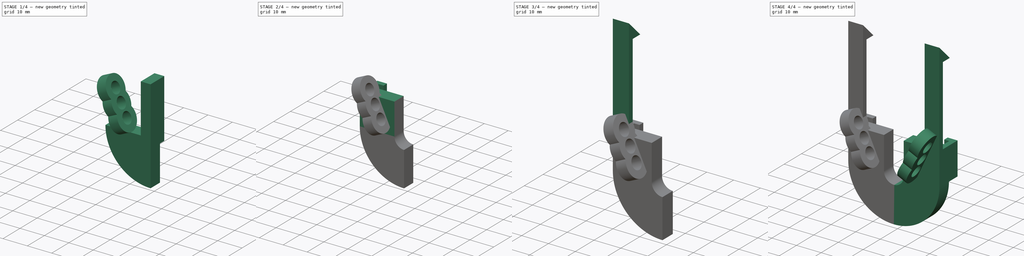
[diagram: build sequence overview — one tinted view per stage of 4, left to right]
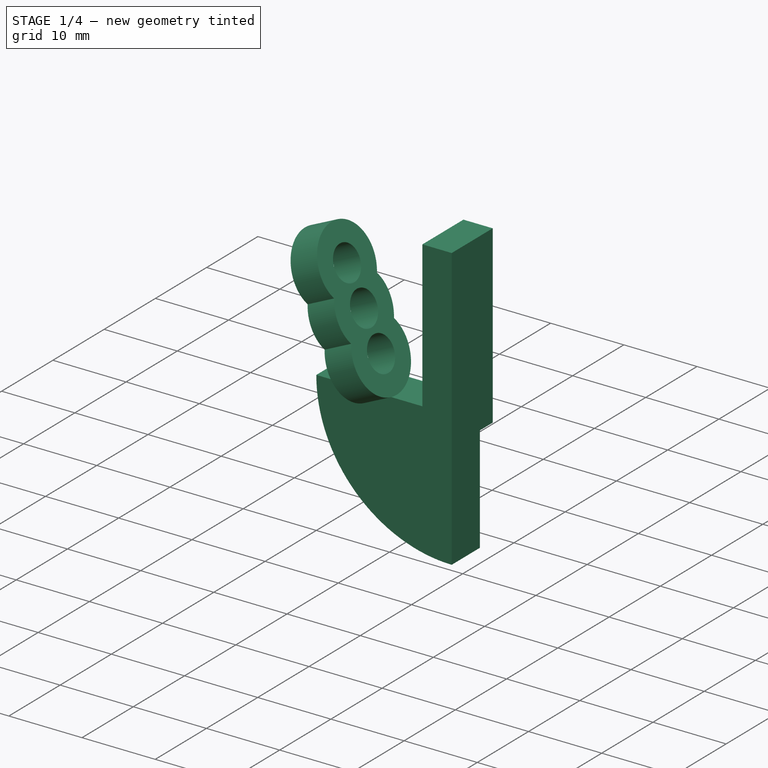
[diagram: stage 1 of 4 — iso view after this stage's code; geometry added in this stage tinted green]
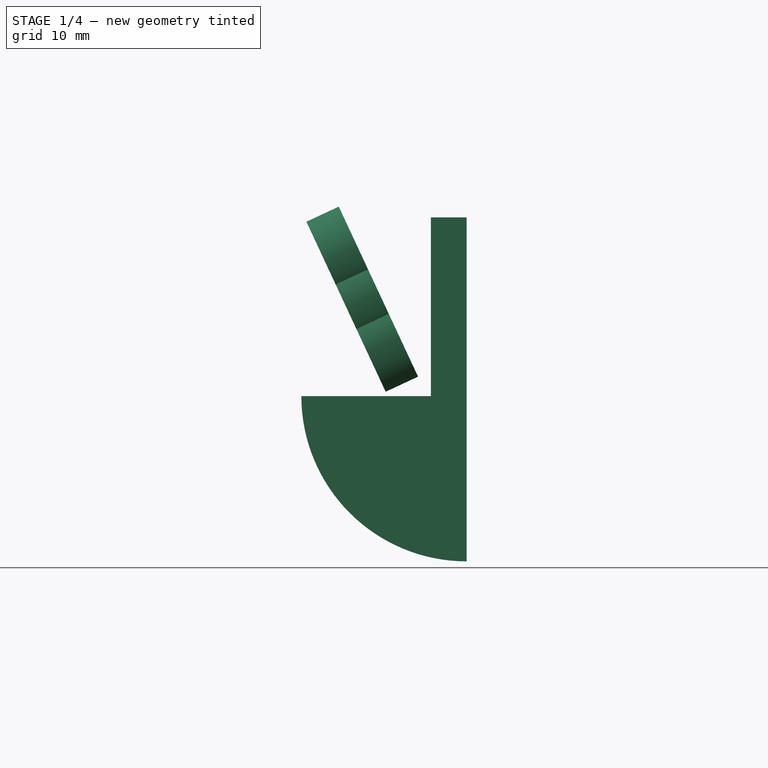
[diagram: stage 1 of 4 — front view after this stage's code; geometry added in this stage tinted green]
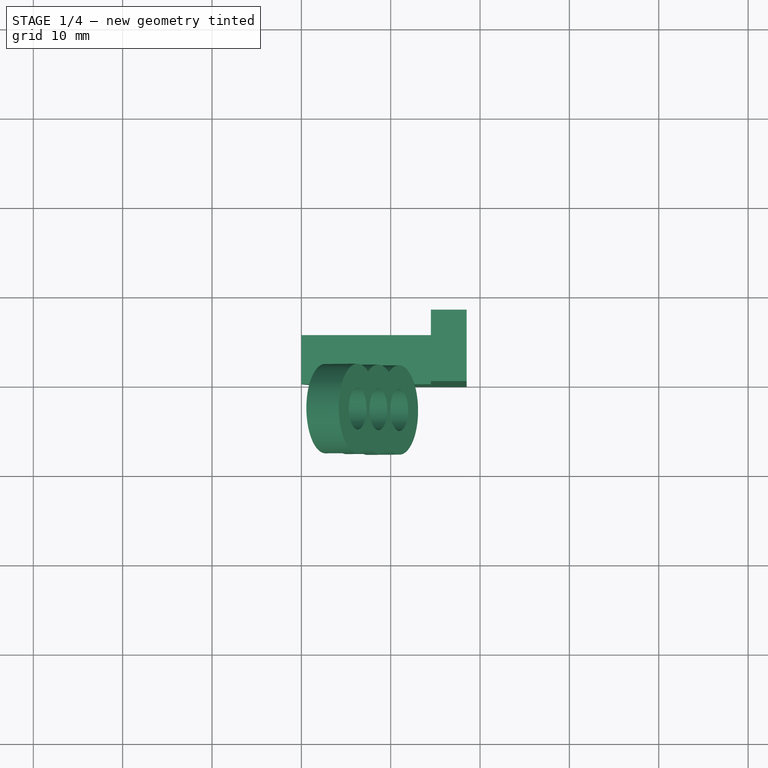
[diagram: stage 1 of 4 — top view after this stage's code; geometry added in this stage tinted green]
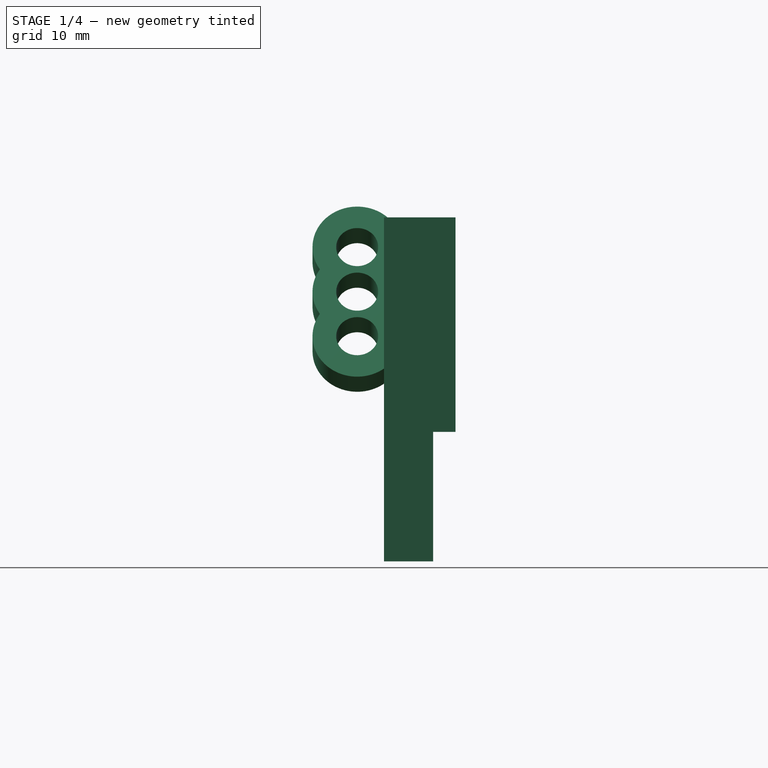
[diagram: stage 1 of 4 — right view after this stage's code; geometry added in this stage tinted green]
FCSTD DOCUMENT  (FreeCAD 0.14R3700 (Git))
Label: test2
License: CC-BY 3.0
LicenseURL: http://creativecommons.org/licenses/by/3.0/
objects: Sketcher::SketchObject×7, PartDesign::Pad×6, Part::MultiFuse×2, Part::Fuse×1, Part::Cut×1, PartDesign::Pocket×1, Part::Mirroring×1
note: 26 computed .brp shape members not serialized (recipe doc carries the construction recipe); baked Part::Feature solids carry a one-line shape summary decoded from their .brp

FEATURE [PartDesign::Pad] Pad001
  Length = 5.5
  Length2 = 20
  Placement = pos=(0,0,0) rot=(1,0,0;1.5708rad)
  Reversed = true
  Sketch = -> Sketch001
  Type = 0
FEATURE [PartDesign::Pad] Pad002
  Length = 8
  Length2 = 20
  Placement = pos=(0,0,0) rot=(1,0,0;1.5708rad)
  Reversed = true
  Sketch = -> Sketch004
  Type = 0
FEATURE [PartDesign::Pad] Pad005
  Length = 4
  Length2 = 20
  Placement = pos=(5,-3,10) rot=(0,1,0;1.13446rad)
  Sketch = -> Sketch002
  Type = 0
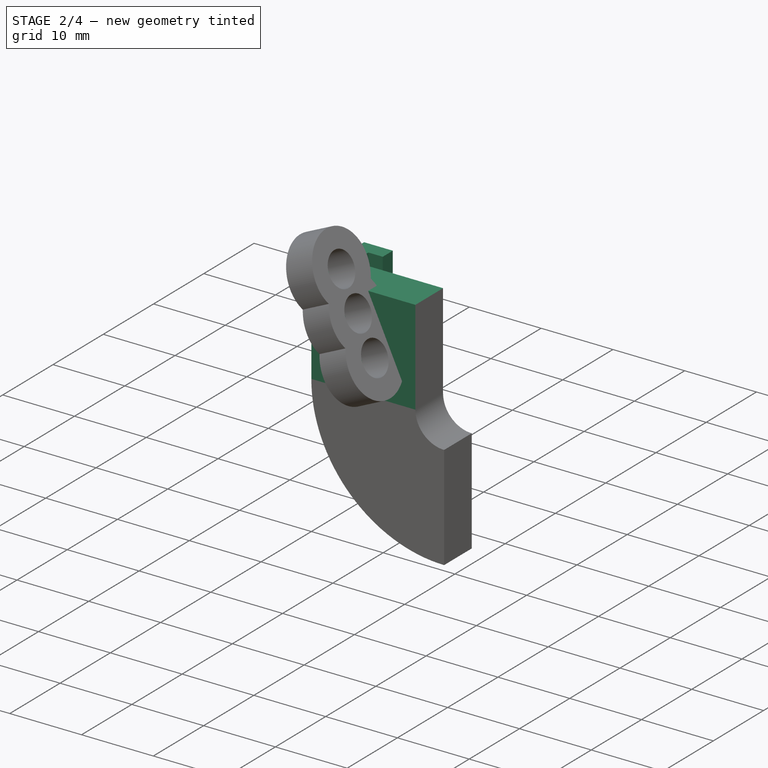
[diagram: stage 2 of 4 — iso view after this stage's code; geometry added in this stage tinted green]
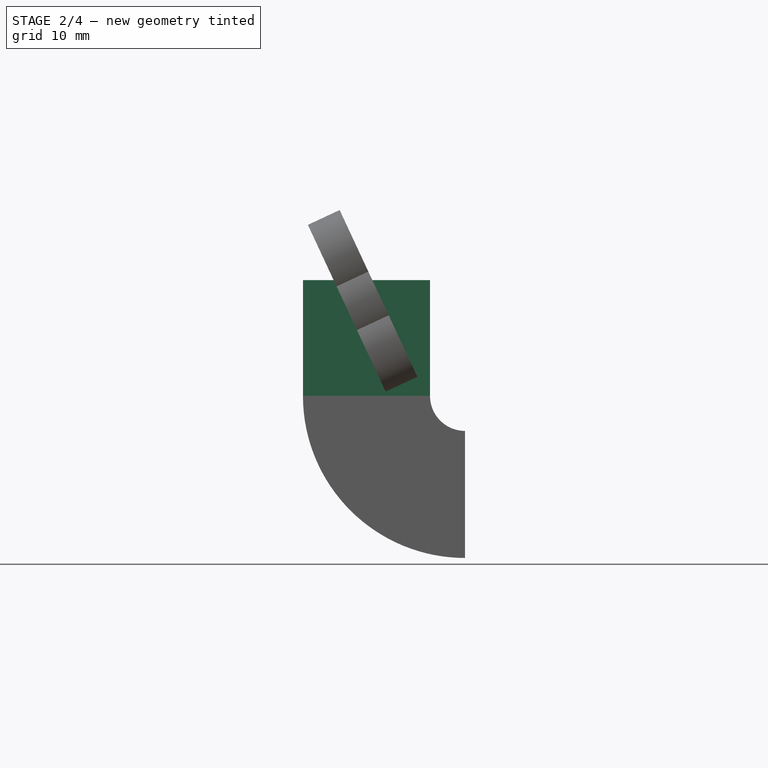
[diagram: stage 2 of 4 — front view after this stage's code; geometry added in this stage tinted green]
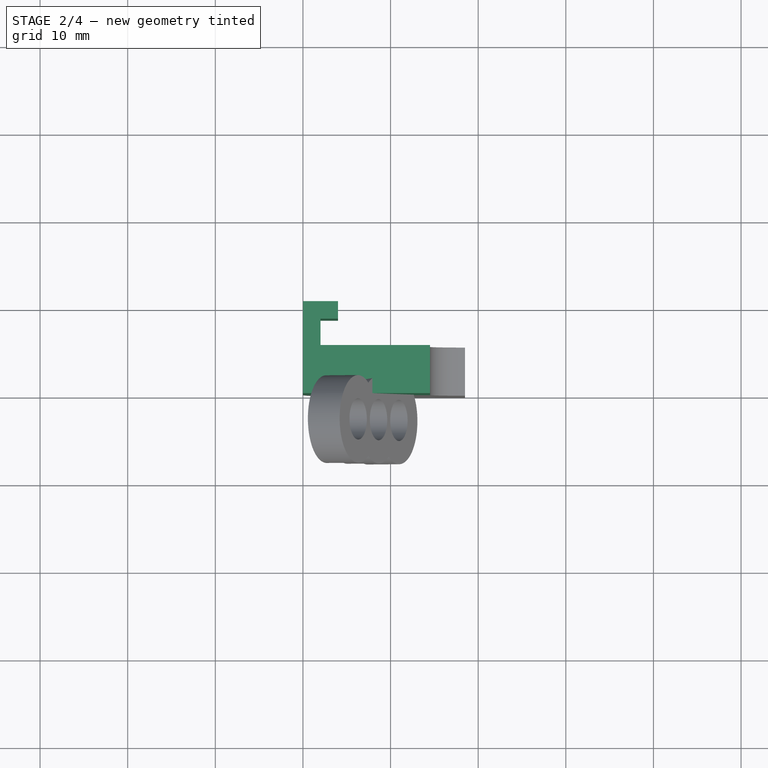
[diagram: stage 2 of 4 — top view after this stage's code; geometry added in this stage tinted green]
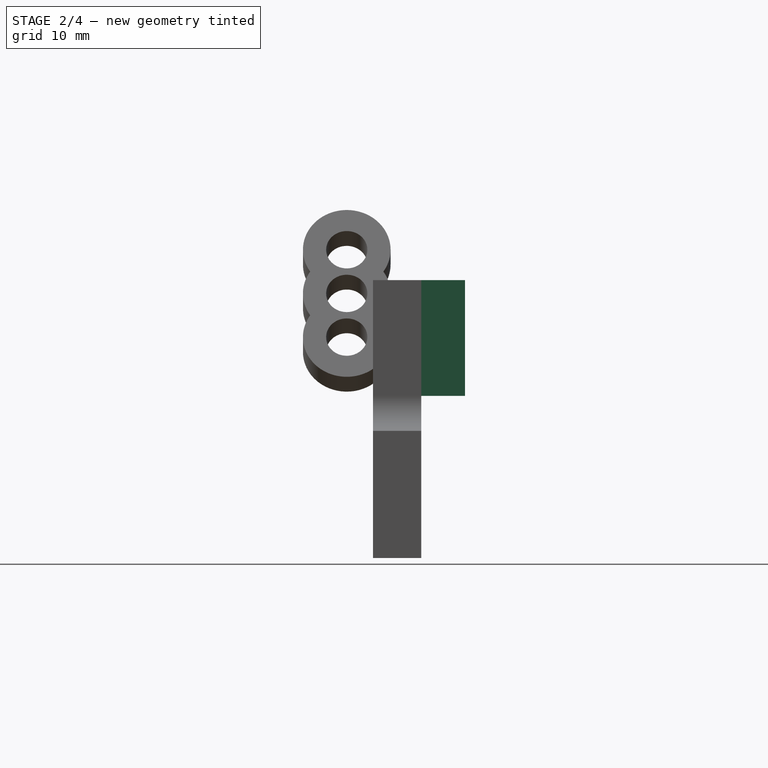
[diagram: stage 2 of 4 — right view after this stage's code; geometry added in this stage tinted green]
FEATURE [Sketcher::SketchObject] Sketch
  sketch-geometry (8):
    g0: LineSegment StartX=2 StartY=5.5 StartZ=0 EndX=18.5 EndY=5.5 EndZ=0
    g1: LineSegment StartX=18.5 StartY=5.5 StartZ=0 EndX=18.5 EndY=0 EndZ=0
    g2: LineSegment StartX=18.5 StartY=0 StartZ=0 EndX=0 EndY=0 EndZ=0
    g3: LineSegment StartX=2 StartY=8.5 StartZ=0 EndX=2 EndY=5.5 EndZ=0
    g4: LineSegment StartX=0 StartY=10.5 StartZ=0 EndX=4 EndY=10.5 EndZ=0
    g5: LineSegment StartX=4 StartY=10.5 StartZ=0 EndX=4 EndY=8.5 EndZ=0
    g6: LineSegment StartX=4 StartY=8.5 StartZ=0 EndX=2 EndY=8.5 EndZ=0
    g7: LineSegment StartX=0 StartY=10.5 StartZ=0 EndX=0 EndY=0 EndZ=0
  constraints (23):
    c: Coincident(g1,g2)
    c: Horizontal(g0)
    c: Horizontal(g2)
    c: Vertical(g1)
    c: DistanceX(g-1,g1) = 18.5
    c: Vertical(g3)
    c: Coincident(g3,g0)
    c: Coincident(g2,g-1)
    c: Coincident(g4,g5)
    c: Coincident(g5,g6)
    c: Horizontal(g4)
    c: Horizontal(g6)
    c: Vertical(g5)
    c: Coincident(g3,g6)
    c: Vertical(g7)
    c: Coincident(g4,g7)
    c: Coincident(g2,g7)
    c: DistanceY(g4,g5) = -2
    c: DistanceX(g-1,g0) = 2
    c: DistanceX(g3,g5) = 2
    c: DistanceY(g0,g1) = -5.5
    c: DistanceY(g0,g3) = 3
    c: Coincident(g0,g1)
FEATURE [Sketcher::SketchObject] Sketch001
  Placement = pos=(0,0,0) rot=(1,0,0;1.5708rad)
  sketch-geometry (3):
    g0: ArcOfCircle CenterX=18.5 CenterY=-4e-12 CenterZ=0 NormalX=0 NormalY=0 NormalZ=1 Radius=18.5 StartAngle=3.14159 EndAngle=4.71239
    g1: LineSegment StartX=18.5 StartY=-4e-12 StartZ=0 EndX=0 EndY=-4e-12 EndZ=0
    g2: LineSegment StartX=18.5 StartY=-4e-12 StartZ=0 EndX=18.5 EndY=-18.5 EndZ=0
  constraints (7):
    c: Coincident(g0,g-1)
    c: Coincident(g0,g1)
    c: Coincident(g0,g1)
    c: Horizontal(g1)
    c: Coincident(g0,g2)
    c: Coincident(g0,g2)
    c: Vertical(g2)
FEATURE [Sketcher::SketchObject] Sketch002
  Placement = pos=(5,-3,10) rot=(0,1,0;1.13446rad)
  sketch-geometry (7):
    g0: Circle CenterX=-5.5 CenterY=0 CenterZ=0 NormalX=0 NormalY=0 NormalZ=1 Radius=2.35
    g1: Circle CenterX=0 CenterY=0 CenterZ=0 NormalX=0 NormalY=0 NormalZ=1 Radius=2.35
    g2: Circle CenterX=5.5 CenterY=0 CenterZ=0 NormalX=0 NormalY=0 NormalZ=1 Radius=2.35
    g3: ArcOfCircle CenterX=-5.5 CenterY=0 CenterZ=0 NormalX=0 NormalY=0 NormalZ=1 Radius=5 StartAngle=0.988432 EndAngle=5.29475
    g4: ArcOfCircle CenterX=5.5 CenterY=0 CenterZ=0 NormalX=0 NormalY=0 NormalZ=1 Radius=5 StartAngle=4.13002 EndAngle=8.43635
    g5: ArcOfCircle CenterX=0 CenterY=0 CenterZ=0 NormalX=0 NormalY=0 NormalZ=1 Radius=5 StartAngle=4.13002 EndAngle=5.29475
    g6: ArcOfCircle CenterX=0 CenterY=0 CenterZ=0 NormalX=0 NormalY=0 NormalZ=1 Radius=5 StartAngle=0.988432 EndAngle=2.15316
  constraints (20):
    c: Radius(g0) = 2.35
    c: Radius(g1) = 2.35
    c: DistanceY(g0,g1) = 0
    c: DistanceX(g0,g1) = 5.5
    c: Radius(g2) = 2.35
    c: DistanceX(g1,g2) = 5.5
    c: DistanceY(g1,g2) = 0
    c: Radius(g3) = 5
    c: Coincident(g3,g0)
    c: Radius(g4) = 5
    c: Coincident(g2,g4)
    c: Coincident(g4,g5)
    c: Coincident(g5,g3)
    c: Coincident(g6,g3)
    c: Coincident(g1,g-1)
    c: Coincident(g6,g4)
    c: Radius(g6) = 5
    c: Radius(g5) = 5
    c: Coincident(g1,g5)
    c: Coincident(g1,g6)
FEATURE [Sketcher::SketchObject] Sketch004
  Placement = pos=(0,0,0) rot=(1,0,0;1.5708rad)
  sketch-geometry (4):
    g0: LineSegment StartX=14.5 StartY=20 StartZ=0 EndX=18.5 EndY=20 EndZ=0
    g1: LineSegment StartX=14.5 StartY=20 StartZ=0 EndX=14.5 EndY=1.70868e-05 EndZ=0
    g2: ArcOfCircle CenterX=18.5 CenterY=0 CenterZ=0 NormalX=0 NormalY=0 NormalZ=1 Radius=4 StartAngle=3.14159 EndAngle=4.71239
    g3: LineSegment StartX=18.5 StartY=20 StartZ=0 EndX=18.5 EndY=-4 EndZ=0
  constraints (13):
    c: Horizontal(g0)
    c: Coincident(g1,g0)
    c: Vertical(g1)
    c: DistanceX(g0,g0) = -4
    c: Radius(g2) = 4
    c: Coincident(g0,g3)
    c: Vertical(g3)
    c: DistanceX(g2,g0) = 0
    c: Coincident(g2,g1)
    c: Coincident(g3,g2)
    c: DistanceY(g0,g2) = -20
    c: DistanceY(g-1,g2) = 0
    c: DistanceX(g-1,g2) = 18.5
FEATURE [PartDesign::Pad] Pad
  Length = 13.2
  Length2 = 20
  Sketch = -> Sketch
  Type = 0
FEATURE [Part::Fuse] Fusion
  Base = -> Pad
  Tool = -> Pad001
FEATURE [Part::Cut] Cut
  Base = -> Fusion
  Tool = -> Pad002
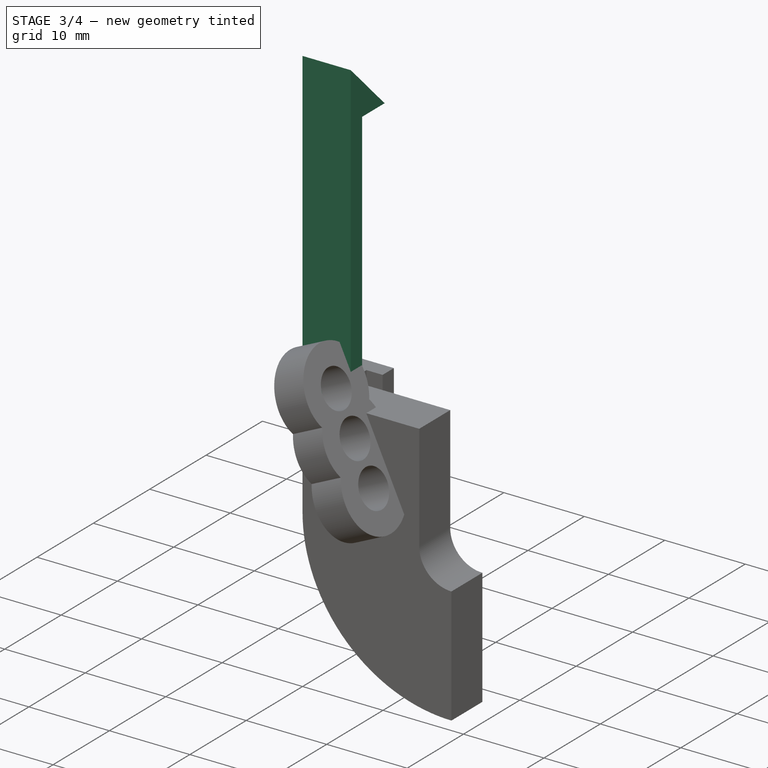
[diagram: stage 3 of 4 — iso view after this stage's code; geometry added in this stage tinted green]
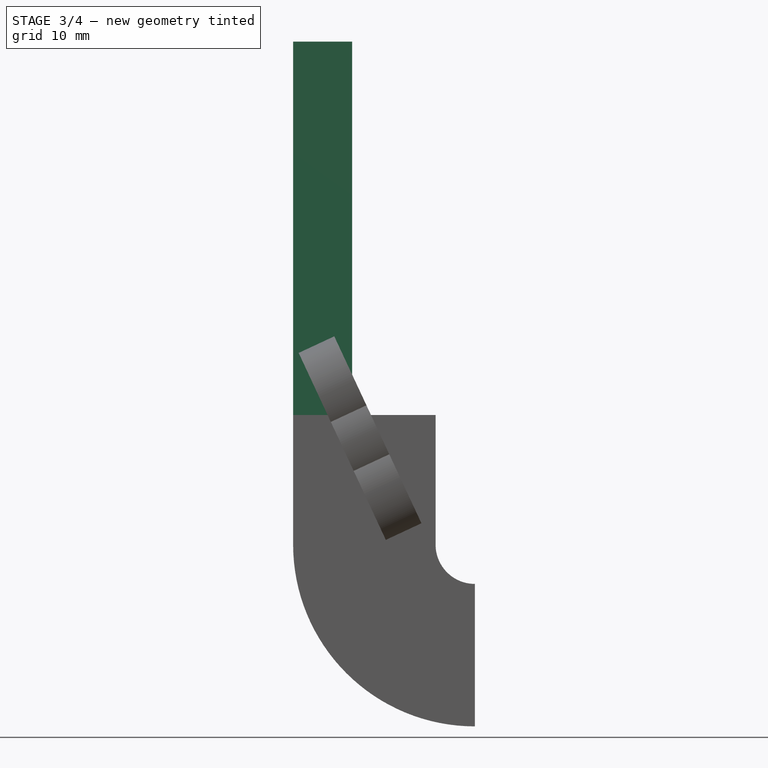
[diagram: stage 3 of 4 — front view after this stage's code; geometry added in this stage tinted green]
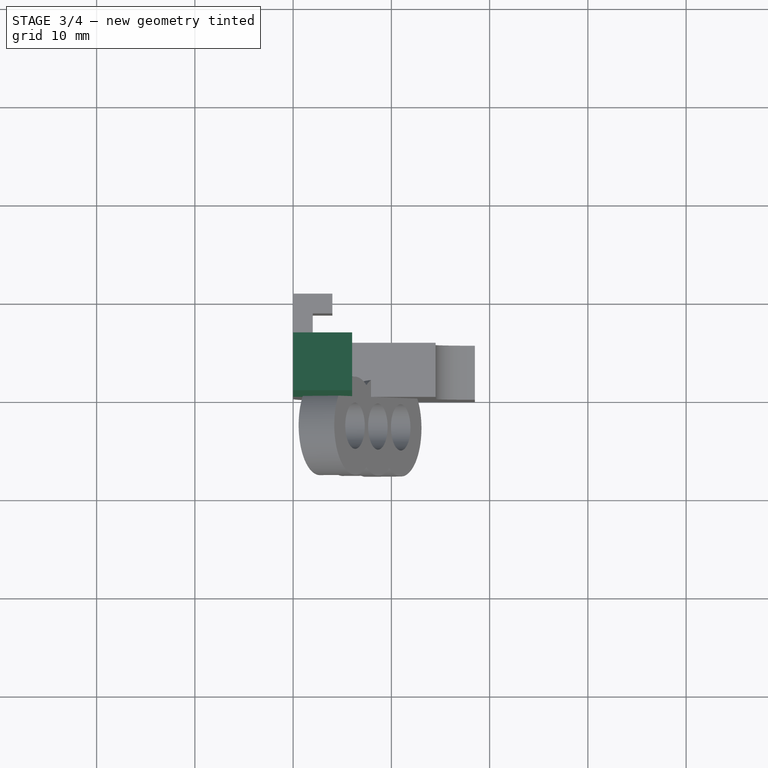
[diagram: stage 3 of 4 — top view after this stage's code; geometry added in this stage tinted green]
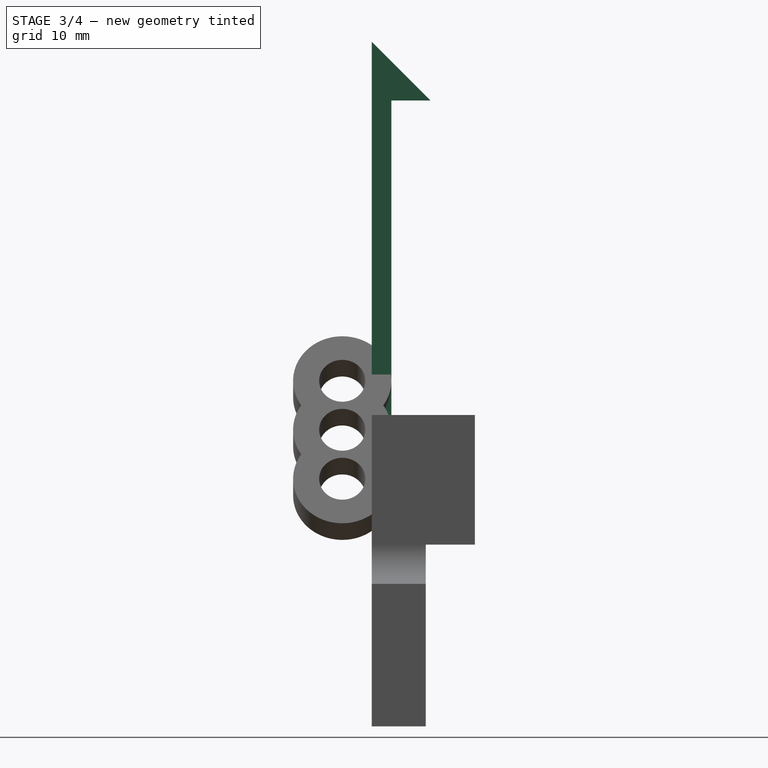
[diagram: stage 3 of 4 — right view after this stage's code; geometry added in this stage tinted green]
FEATURE [Sketcher::SketchObject] Sketch005
  Placement = pos=(0,0,13.2) rot=(0,0,1;0rad)
  Support = -> Cut [Face5]
  sketch-geometry (4):
    g0: LineSegment StartX=0 StartY=2 StartZ=0 EndX=6 EndY=2 EndZ=0
    g1: LineSegment StartX=6 StartY=2 StartZ=0 EndX=6 EndY=0 EndZ=0
    g2: LineSegment StartX=6 StartY=0 StartZ=0 EndX=0 EndY=0 EndZ=0
    g3: LineSegment StartX=0 StartY=0 StartZ=0 EndX=0 EndY=2 EndZ=0
  constraints (11):
    c: Coincident(g0,g1)
    c: Coincident(g1,g2)
    c: Coincident(g2,g3)
    c: Coincident(g3,g0)
    c: Horizontal(g0)
    c: Horizontal(g2)
    c: Vertical(g1)
    c: Vertical(g3)
    c: DistanceY(g0,g1) = -2
    c: DistanceX(g0,g0) = 6
    c: Coincident(g-1,g2)
FEATURE [PartDesign::Pad] Pad003
  Length = 38
  Length2 = 20
  Sketch = -> Sketch005
  Type = 0
FEATURE [Sketcher::SketchObject] Sketch006
  ExternalGeometry = -> [Pad003]
  Placement = pos=(0,0,0) rot=(0.57735,-0.57735,-0.57735;2.0944rad)
  Support = -> Pad003 [Face5]
  sketch-geometry (3):
    g0: LineSegment StartX=0 StartY=51.2 StartZ=0 EndX=0 EndY=45.2 EndZ=0
    g1: LineSegment StartX=0 StartY=45.2 StartZ=0 EndX=-6 EndY=45.2 EndZ=0
    g2: LineSegment StartX=-6 StartY=45.2 StartZ=0 EndX=0 EndY=51.2 EndZ=0
  constraints (8):
    c: Coincident(g0,g2)
    c: Coincident(g0,g-3)
    c: DistanceY(g0,g0) = -6
    c: Coincident(g0,g1)
    c: Horizontal(g1)
    c: Coincident(g1,g2)
    c: DistanceX(g1,g0) = 6
    c: Vertical(g0)
FEATURE [PartDesign::Pad] Pad004
  Length = 6
  Length2 = 20
  Reversed = true
  Sketch = -> Sketch006
  Type = 0
FEATURE [Sketcher::SketchObject] Sketch007
  ExternalGeometry = -> [Pad004]
  Placement = pos=(0,0,0) rot=(0.57735,-0.57735,-0.57735;2.0944rad)
  Support = -> Pad004 [Face30]
  sketch-geometry (3):
    g0: LineSegment StartX=-2 StartY=51.2 StartZ=0 EndX=0 EndY=51.2 EndZ=0
    g1: LineSegment StartX=0 StartY=51.2 StartZ=0 EndX=-2 EndY=49.2 EndZ=0
    g2: LineSegment StartX=-2 StartY=49.2 StartZ=0 EndX=-2 EndY=51.2 EndZ=0
  constraints (8):
    c: Coincident(g0,g1)
    c: Coincident(g1,g2)
    c: Coincident(g0,g2)
    c: Horizontal(g0)
    c: Vertical(g2)
    c: DistanceX(g0,g0) = 2
    c: DistanceY(g1,g0) = 2
    c: Coincident(g0,g-3)
FEATURE [PartDesign::Pocket] Pocket
  Length = 6
  Sketch = -> Sketch007
  Type = 0
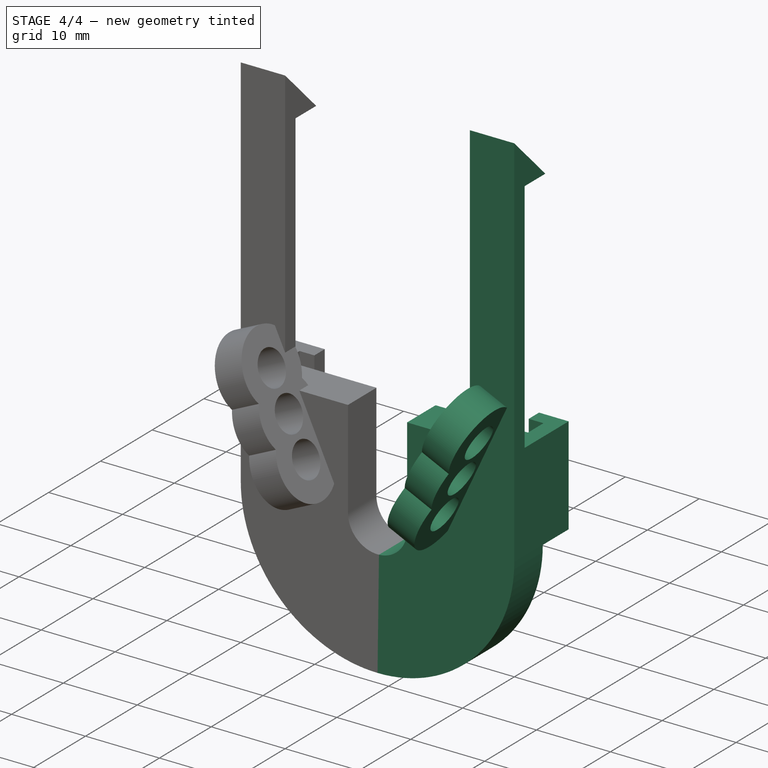
[diagram: stage 4 of 4 — iso view after this stage's code; geometry added in this stage tinted green]
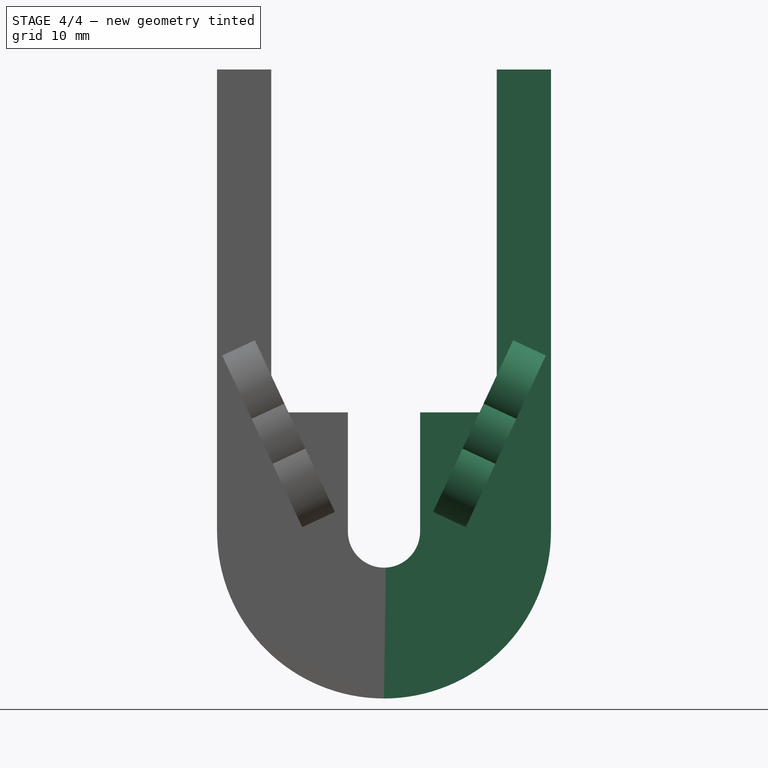
[diagram: stage 4 of 4 — front view after this stage's code; geometry added in this stage tinted green]
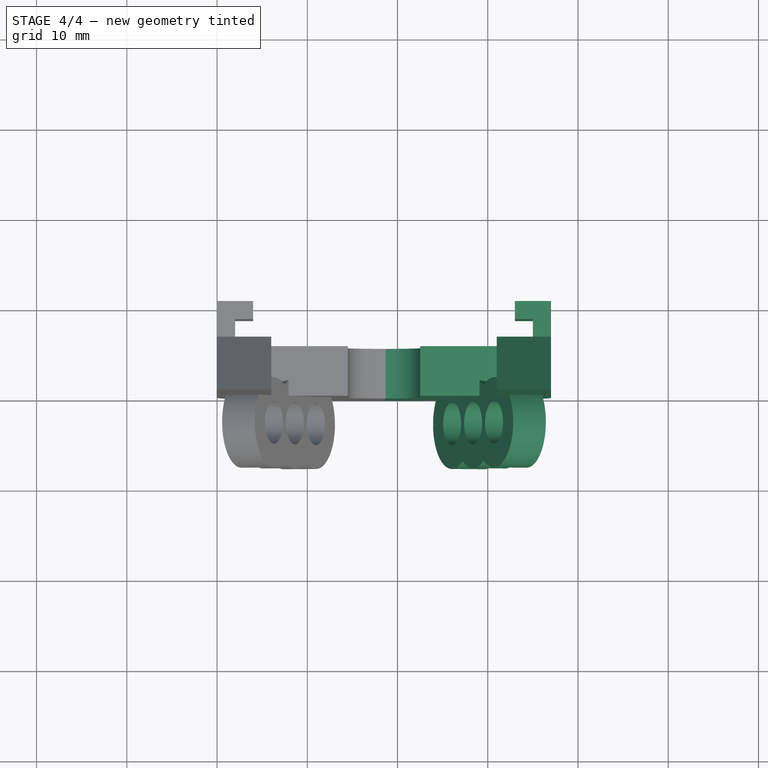
[diagram: stage 4 of 4 — top view after this stage's code; geometry added in this stage tinted green]
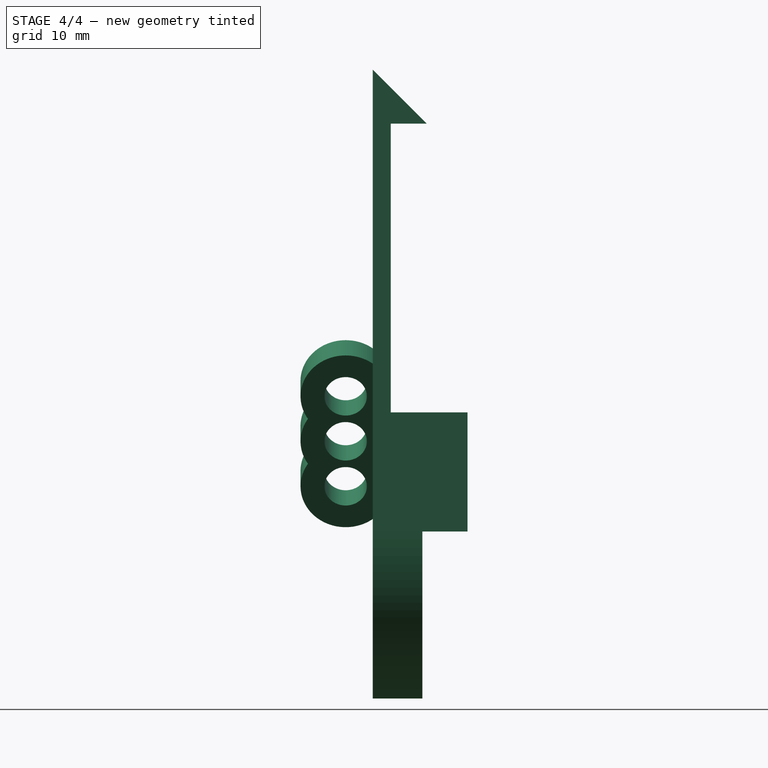
[diagram: stage 4 of 4 — right view after this stage's code; geometry added in this stage tinted green]
FEATURE [Part::MultiFuse] Fusion001
  Shapes = -> [Pocket,Pad005]
FEATURE [Part::Mirroring] Part__Mirroring  label="Fusion001 (Mirror #1)"
  Base = (0,0,0)
  Normal = (1,0,0)
  Placement = pos=(37,0,0) rot=(0,0,1;0rad)
  Source = -> Fusion001
FEATURE [Part::MultiFuse] Fusion002
  Shapes = -> [Fusion001,Part__Mirroring]
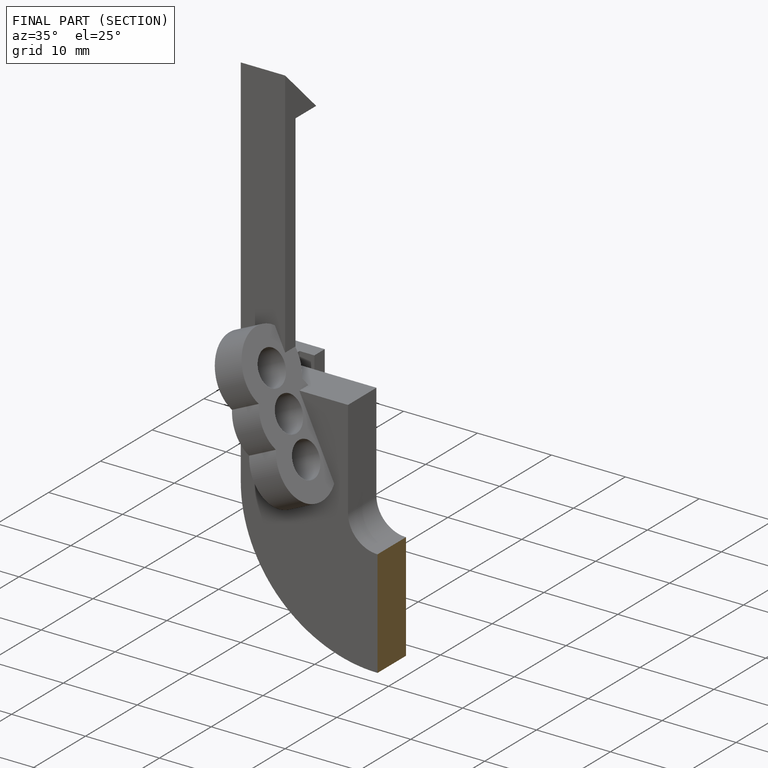
[diagram: finished part — half-section view (interior)]
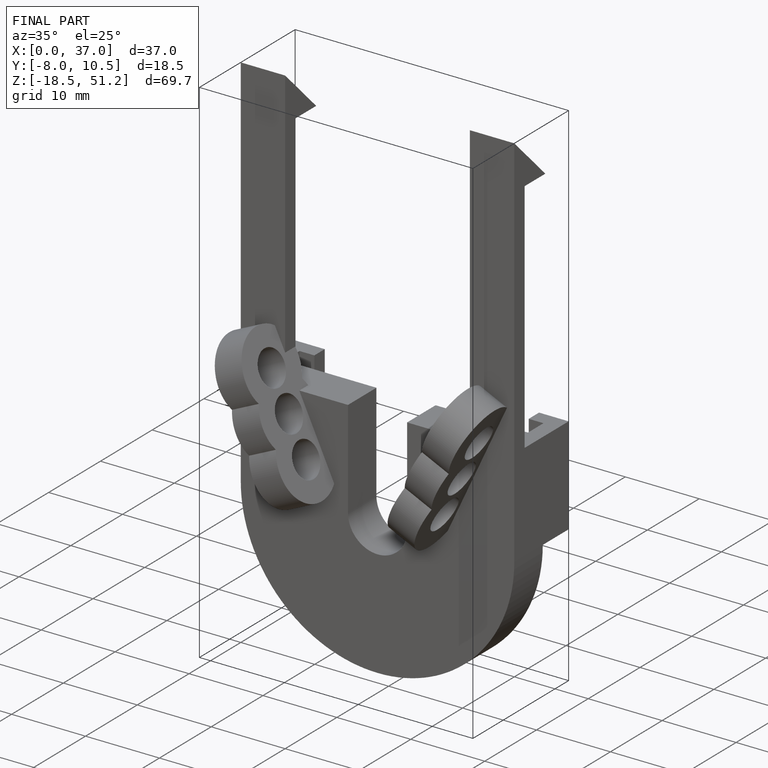
[diagram: finished part — iso view with bounding-box wireframe]
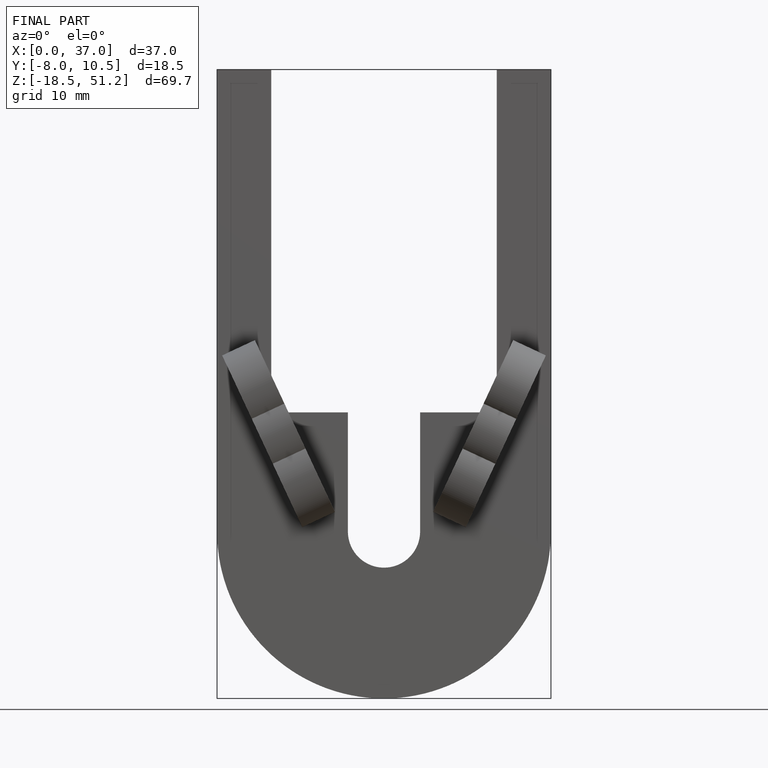
[diagram: finished part — front view with bounding-box wireframe]
